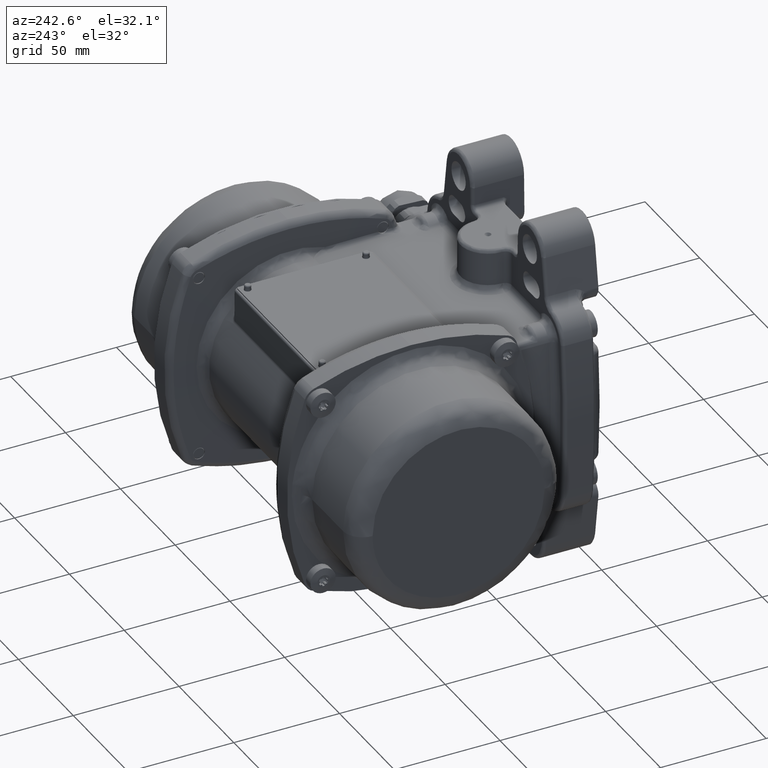
[diagram: clean part render]
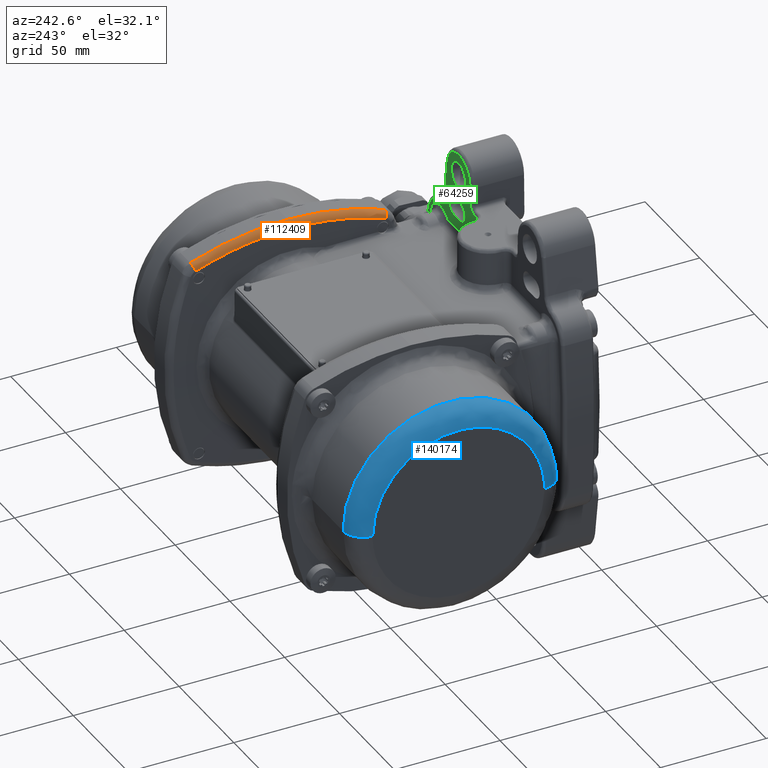
[diagram: same view with three faces highlighted in distinct colors, each labeled with its STEP entity id]
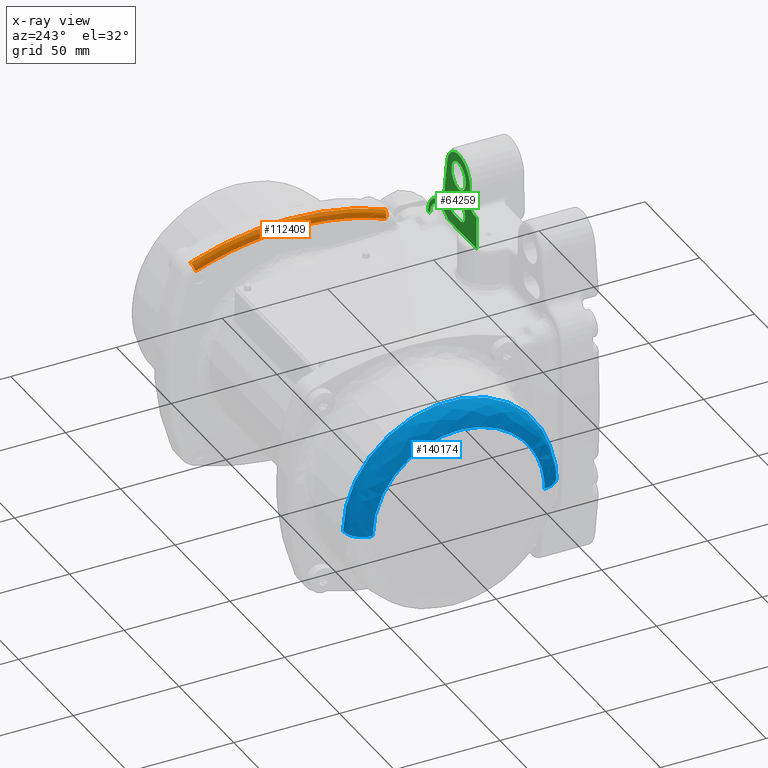
[diagram: x-ray of the same camera — body ghosted, the three highlighted faces saturated]
A machine part, auxiliary view with three faces highlighted in distinct colors.
The next image is the same camera in x-ray (body ghosted, the three faces saturated) — at least one of them is partly hidden behind the body in this view.
Their STEP definitions:

[orange] entity #112409 — the highlighted face is a freeform B-spline surface patch.
#5527 = CARTESIAN_POINT ( 'NONE',  ( 48.61371983258209900, 64.94570442712675600, 54.76739152144466500 ) ) ;
#6011 = AXIS2_PLACEMENT_3D ( 'NONE', #68147, #102125, #91673 ) ;
#6048 = CARTESIAN_POINT ( 'NONE',  ( 48.46951026061550000, 76.85898785585619900, 54.17399594048150400 ) ) ;
#6319 = CARTESIAN_POINT ( 'NONE',  ( 51.60105501471657900, 134.5244609994418300, 52.67594980419929800 ) ) ;
#7091 = CARTESIAN_POINT ( 'NONE',  ( 51.42833048294309600, 103.8399051866252000, 58.32064827485579900 ) ) ;
#7255 = CARTESIAN_POINT ( 'NONE',  ( 48.49614704456033100, 72.32049784049165500, 53.33316051039447800 ) ) ;
#7603 = CARTESIAN_POINT ( 'NONE',  ( 48.45247648479460200, 80.64076612736920400, 54.69728445269199600 ) ) ;
#8632 = CARTESIAN_POINT ( 'NONE',  ( 51.67570246307550300, 141.9816342187540100, 50.02671618596749400 ) ) ;
#8805 = CARTESIAN_POINT ( 'NONE',  ( 48.44132135633546500, 84.34050420784579700, 55.03773168961637900 ) ) ;
#9319 = CARTESIAN_POINT ( 'NONE',  ( 48.42361390779068100, 95.03173009050186700, 55.57501824047997700 ) ) ;
#9832 = CARTESIAN_POINT ( 'NONE',  ( 48.42422976488846600, 93.59045366656461300, 55.55629560074481800 ) ) ;
#10360 = CARTESIAN_POINT ( 'NONE',  ( 48.49073135167259400, 118.7652330205184400, 53.50427519209131300 ) ) ;
#10834 = CARTESIAN_POINT ( 'NONE',  ( 48.67673048814869900, 51.03358655574789500, 47.28067419441330100 ) ) ;
#10868 = CARTESIAN_POINT ( 'NONE',  ( 48.49020639426154800, 118.6749428018575000, 53.52083142521495100 ) ) ;
#11603 = CIRCLE ( 'NONE', #6011, 3.000000000000001800 ) ;
#13001 = EDGE_CURVE ( 'NONE', #125547, #132725, #138570, .T. ) ;
#16712 = EDGE_CURVE ( 'NONE', #55317, #125547, #98289, .T. ) ;
#17559 = CARTESIAN_POINT ( 'NONE',  ( 48.42935850801880100, 103.6684139957750100, 55.40277941439329400 ) ) ;
#17919 = CARTESIAN_POINT ( 'NONE',  ( 51.51236919346409600, 68.76533035875958400, 55.65252669724460300 ) ) ;
#18085 = CARTESIAN_POINT ( 'NONE',  ( 51.63671979496099600, 53.71140524554340300, 51.43563194486620200 ) ) ;
#18250 = CARTESIAN_POINT ( 'NONE',  ( 48.47052396258361300, 76.90991346697902000, 54.13795910701661300 ) ) ;
#19603 = CARTESIAN_POINT ( 'NONE',  ( 48.49999346348776200, 99.93232771788211700, 58.50020744430681700 ) ) ;
#19860 = CARTESIAN_POINT ( 'NONE',  ( 51.42833703483981400, 103.8421408328568600, 58.32044422051600900 ) ) ;
#20643 = CARTESIAN_POINT ( 'NONE',  ( 48.63778283550820400, 137.3593910833685900, 48.65854385641320300 ) ) ;
#20688 = EDGE_LOOP ( 'NONE', ( #83047, #123111, #123662, #113775, #43339 ) ) ;
#20751 = CARTESIAN_POINT ( 'NONE',  ( 51.67570246307550300, 141.9816342187540100, 50.02671618596740200 ) ) ;
#21323 = CARTESIAN_POINT ( 'NONE',  ( 48.51212029019610100, 122.4328852666649400, 52.82950133434548700 ) ) ;
#21848 = CARTESIAN_POINT ( 'NONE',  ( 48.42532265653458300, 92.15007283968894600, 55.52315384702183100 ) ) ;
#22179 = CARTESIAN_POINT ( 'NONE',  ( 48.67421793827923400, 134.5496797155318200, 52.66814498006429800 ) ) ;
#22586 = VERTEX_POINT ( 'NONE', #80656 ) ;
#27834 = CARTESIAN_POINT ( 'NONE',  ( 51.63671979496099600, 53.71140524554340300, 51.43563194486620200 ) ) ;
#29151 = EDGE_CURVE ( 'NONE', #22586, #132725, #86889, .T. ) ;
#29370 = CARTESIAN_POINT ( 'NONE',  ( 51.42981408446079400, 88.10886955799050200, 58.27349483533719600 ) ) ;
#29884 = CARTESIAN_POINT ( 'NONE',  ( 51.60139193831100400, 57.44029159500139800, 52.66421566935110100 ) ) ;
#30562 = CARTESIAN_POINT ( 'NONE',  ( 51.42395315197239800, 92.04573469983439800, 58.45443651807919800 ) ) ;
#30834 = CARTESIAN_POINT ( 'NONE',  ( 51.63675478399059000, 138.2919094536022200, 51.43436736811119700 ) ) ;
#31595 = CARTESIAN_POINT ( 'NONE',  ( 48.45213307937150700, 111.2692224610320000, 54.70781685745390600 ) ) ;
#31775 = CARTESIAN_POINT ( 'NONE',  ( 48.49210438386595700, 73.00019331610545200, 53.46094453904356000 ) ) ;
#31870 = CARTESIAN_POINT ( 'NONE',  ( 51.51176175067006800, 123.1431090096454000, 55.67234547663360900 ) ) ;
#32127 = CARTESIAN_POINT ( 'NONE',  ( 48.53963668754779800, 126.2737309078395800, 51.94701249644539600 ) ) ;
#32295 = CARTESIAN_POINT ( 'NONE',  ( 48.52037667713323500, 68.57495389253624300, 52.56023908373374100 ) ) ;
#32642 = CARTESIAN_POINT ( 'NONE',  ( 48.74745534326889600, 142.0092591833091500, 50.01617710338329200 ) ) ;
#32809 = CARTESIAN_POINT ( 'NONE',  ( 48.44002940461405200, 107.2273905072623400, 55.07715157057908300 ) ) ;
#33302 = CARTESIAN_POINT ( 'NONE',  ( 48.42352220174579700, 95.51247340396312800, 55.57781224333723500 ) ) ;
#34359 = CARTESIAN_POINT ( 'NONE',  ( 48.44623761432421100, 82.80858799624167000, 54.88738804316101000 ) ) ;
#34875 = CARTESIAN_POINT ( 'NONE',  ( 48.48969006471971000, 118.5859131712282800, 53.53711148955068200 ) ) ;
#35230 = CARTESIAN_POINT ( 'NONE',  ( 48.67673048814879900, 140.9664134442518000, 47.28067419441360600 ) ) ;
#36180 = AXIS2_PLACEMENT_3D ( 'NONE', #61113, #88153, #148233 ) ;
#39865 = CARTESIAN_POINT ( 'NONE',  ( 51.46848223554089700, 76.43015957668629300, 57.06648685439510200 ) ) ;
#40881 = CARTESIAN_POINT ( 'NONE',  ( 51.42247398630980400, 94.02512534248110400, 58.49989616555889400 ) ) ;
#41393 = CARTESIAN_POINT ( 'NONE',  ( 51.42247061470285300, 95.99547053162832800, 58.49999994036055300 ) ) ;
#42085 = CARTESIAN_POINT ( 'NONE',  ( 48.51138364519870500, 86.14192096757878400, 58.13771398864324900 ) ) ;
#42590 = CARTESIAN_POINT ( 'NONE',  ( 48.67673048814869900, 51.03358655574789500, 47.28067419441330100 ) ) ;
#43090 = CARTESIAN_POINT ( 'NONE',  ( 48.52816573008625100, 80.28512922857761700, 57.59925060312441000 ) ) ;
#43339 = ORIENTED_EDGE ( 'NONE', *, *, #87379, .T. ) ;
#43618 = CARTESIAN_POINT ( 'NONE',  ( 48.54427327176982500, 115.4861874931286800, 57.07944447143592700 ) ) ;
#44816 = CARTESIAN_POINT ( 'NONE',  ( 48.42349906240232100, 95.75420285663867000, 55.57851845684282200 ) ) ;
#45320 = CARTESIAN_POINT ( 'NONE',  ( 48.47043927774239300, 115.0045142860175100, 54.14016284088431500 ) ) ;
#45837 = CARTESIAN_POINT ( 'NONE',  ( 48.48612455661299200, 117.9630249752371300, 53.64939067888023800 ) ) ;
#46186 = CARTESIAN_POINT ( 'NONE',  ( 48.61312858009730300, 126.9753947827207000, 54.78761825024405100 ) ) ;
#47711 = EDGE_CURVE ( 'NONE', #104648, #22586, #128424, .T. ) ;
#53492 = CARTESIAN_POINT ( 'NONE',  ( 51.60139193831100400, 57.44029159500139800, 52.66421566935110100 ) ) ;
#53993 = CARTESIAN_POINT ( 'NONE',  ( 48.43521558778960700, 86.36489562540410200, 55.22407747189630100 ) ) ;
#54510 = CARTESIAN_POINT ( 'NONE',  ( 48.42349190819160000, 99.84341668472110600, 55.57873380993209600 ) ) ;
#55034 = CARTESIAN_POINT ( 'NONE',  ( 48.50568977599766600, 103.8460214299663100, 58.32035527327367000 ) ) ;
#55317 = VERTEX_POINT ( 'NONE', #10834 ) ;
#55544 = CARTESIAN_POINT ( 'NONE',  ( 51.46848223554089700, 76.43015957668629300, 57.06648685439510200 ) ) ;
#55714 = CARTESIAN_POINT ( 'NONE',  ( 48.48030011924164000, 75.01627995415762500, 53.83347280842695400 ) ) ;
#56589 = CARTESIAN_POINT ( 'NONE',  ( 51.60105501471670000, 134.5244609994418000, 52.67594980419930600 ) ) ;
#57338 =( BOUNDED_SURFACE ( )  B_SPLINE_SURFACE ( 3, 2, ( 
 ( #66475, #65966, #42590 ),
 ( #18085, #101983, #77984 ),
 ( #53492, #114489, #137030 ),
 ( #79034, #5527, #126031 ),
 ( #125510, #77494, #101455 ),
 ( #55544, #126538, #6048 ),
 ( #102485, #43090, #7603 ),
 ( #113454, #42085, #53993 ),
 ( #149521, #89963, #78496 ),
 ( #30562, #127048, #113975 ),
 ( #138560, #76983, #66981 ),
 ( #88944, #19603, #54510 ),
 ( #7091, #55034, #17559 ),
 ( #150555, #103021, #31595 ),
 ( #100939, #43618, #104047 ),
 ( #92050, #69043, #68515 ),
 ( #152113, #46186, #32127 ),
 ( #56589, #22179, #129657 ),
 ( #93077, #105075, #20643 ),
 ( #8632, #32642, #140096 ) ),
 .UNSPECIFIED., .F., .F., .F. ) 
 B_SPLINE_SURFACE_WITH_KNOTS ( ( 4, 2, 2, 2, 2, 2, 2, 2, 2, 4 ),
 ( 3, 3 ),
 ( 0.0000000000000000000, 0.01141851045592982000, 0.02283702091185965000, 0.03425553136778945000, 0.03996478659575435100, 0.04567404182371930000, 0.05709255227964910000, 0.06851106273557890100, 0.07992957319150870200, 0.09134808364743850200 ),
 ( 0.0000000000000000000, 1.000000000000000000 ),
 .UNSPECIFIED. ) 
 GEOMETRIC_REPRESENTATION_ITEM ( )  RATIONAL_B_SPLINE_SURFACE ( (
 ( 1.000000000000000000, 0.7155950758565770000, 1.000000000000000000),
 ( 1.000000000000000000, 0.7156797149484079900, 1.000000000000000000),
 ( 1.000000000000000000, 0.7157661602063930500, 1.000000000000000000),
 ( 1.000000000000000000, 0.7159312861231019700, 1.000000000000000000),
 ( 1.000000000000000000, 0.7160099537741629900, 1.000000000000000000),
 ( 1.000000000000000000, 0.7161455734733610500, 1.000000000000000000),
 ( 1.000000000000000000, 0.7162023605090200900, 1.000000000000000000),
 ( 1.000000000000000000, 0.7162610806379839900, 1.000000000000000000),
 ( 1.000000000000000000, 0.7162762655063720200, 1.000000000000000000),
 ( 1.000000000000000000, 0.7162967074541289900, 1.000000000000000000),
 ( 1.000000000000000000, 0.7163019425111519800, 1.000000000000000000),
 ( 1.000000000000000000, 0.7163019451903129800, 1.000000000000000000),
 ( 1.000000000000000000, 0.7162810226169810100, 1.000000000000000000),
 ( 1.000000000000000000, 0.7162035123865480000, 1.000000000000000000),
 ( 1.000000000000000000, 0.7161471169938940000, 1.000000000000000000),
 ( 1.000000000000000000, 0.7160117621070860600, 1.000000000000000000),
 ( 1.000000000000000000, 0.7159329675619650100, 1.000000000000000000),
 ( 1.000000000000000000, 0.7157669814152040100, 1.000000000000000000),
 ( 1.000000000000000000, 0.7156796319363240000, 1.000000000000000000),
 ( 1.000000000000000000, 0.7155950758565770000, 1.000000000000000000) ) ) 
 REPRESENTATION_ITEM ( '' )  SURFACE ( )  );
#57775 = CARTESIAN_POINT ( 'NONE',  ( 48.53821796749126300, 126.0865887013019900, 51.99242873211932200 ) ) ;
#58307 = CARTESIAN_POINT ( 'NONE',  ( 48.42349529222332200, 97.90738537984084600, 55.57862841458452200 ) ) ;
#61113 = CARTESIAN_POINT ( 'NONE',  ( 51.67570246307550300, 140.9122938880852000, 47.22376929792169900 ) ) ;
#64789 = CARTESIAN_POINT ( 'NONE',  ( 51.42247061277184600, 95.99773527005538700, 58.50000000012939700 ) ) ;
#65966 = CARTESIAN_POINT ( 'NONE',  ( 48.74745534326875400, 49.99074081669054000, 50.01617710338294400 ) ) ;
#66475 = CARTESIAN_POINT ( 'NONE',  ( 51.67570246307540300, 50.01836578124579800, 50.02671618596719600 ) ) ;
#66638 = CARTESIAN_POINT ( 'NONE',  ( 48.53991346551261900, 65.84188223814788900, 51.92924027145210900 ) ) ;
#66981 = CARTESIAN_POINT ( 'NONE',  ( 48.42350201138160100, 94.06832325716830200, 55.57842909943879300 ) ) ;
#67232 = CARTESIAN_POINT ( 'NONE',  ( 51.67570246307550300, 141.9816342187540100, 50.02671618596740200 ) ) ;
#68147 = CARTESIAN_POINT ( 'NONE',  ( 51.67570246307540300, 51.08770611191449300, 47.22376929792140000 ) ) ;
#68515 = CARTESIAN_POINT ( 'NONE',  ( 48.51278977574580200, 122.5472815967937900, 52.80838038336570200 ) ) ;
#68686 = CARTESIAN_POINT ( 'NONE',  ( 48.47772856025735400, 116.4232948052231900, 53.91264509398242000 ) ) ;
#69043 = CARTESIAN_POINT ( 'NONE',  ( 48.58692394623884100, 123.1623833049596200, 55.66828846709783800 ) ) ;
#69207 = CARTESIAN_POINT ( 'NONE',  ( 48.44638111242597500, 109.3498164631472600, 54.88333451465574300 ) ) ;
#69742 = CARTESIAN_POINT ( 'NONE',  ( 48.42381961465063300, 94.31083023177411900, 55.56875436961441000 ) ) ;
#76983 = CARTESIAN_POINT ( 'NONE',  ( 48.50000327672562900, 94.02363713088068700, 58.49989600906165100 ) ) ;
#77494 = CARTESIAN_POINT ( 'NONE',  ( 48.58751662558676500, 68.74600232387005900, 55.64844325873713900 ) ) ;
#77649 = CARTESIAN_POINT ( 'NONE',  ( 48.49260429646279400, 72.91524721669085800, 53.44515981244179400 ) ) ;
#77984 = CARTESIAN_POINT ( 'NONE',  ( 48.63774783583100000, 54.64385030888719500, 48.65978205670359800 ) ) ;
#78496 = CARTESIAN_POINT ( 'NONE',  ( 48.43084210953060200, 88.28152759446040000, 55.35658639290419800 ) ) ;
#79034 = CARTESIAN_POINT ( 'NONE',  ( 51.53921369121099600, 64.96723904162429600, 54.77267411939950400 ) ) ;
#80212 = CARTESIAN_POINT ( 'NONE',  ( 48.44168201354074200, 84.22265763839232000, 55.02671947765454500 ) ) ;
#80656 = CARTESIAN_POINT ( 'NONE',  ( 51.42247061277319600, 96.00000000000000000, 58.50000000015510400 ) ) ;
#80734 = CARTESIAN_POINT ( 'NONE',  ( 48.43950290284730200, 107.0474992323492000, 55.09320482642613800 ) ) ;
#81266 = CARTESIAN_POINT ( 'NONE',  ( 48.42924114904624800, 102.6811029246086100, 55.40461628687724300 ) ) ;
#81776 = CARTESIAN_POINT ( 'NONE',  ( 48.44038321547695600, 107.3473331481571200, 55.06636080791716400 ) ) ;
#82293 = CARTESIAN_POINT ( 'NONE',  ( 48.44222699433673500, 84.04589031900562200, 55.01007517804066500 ) ) ;
#83047 = ORIENTED_EDGE ( 'NONE', *, *, #47711, .T. ) ;
#86889 = B_SPLINE_CURVE_WITH_KNOTS ( 'NONE', 3,
 ( #102229, #137791, #19860, #149775, #137289, #31870, #103294, #6319, #30834, #67232 ),
 .UNSPECIFIED., .F., .F.,
 ( 4, 2, 2, 2, 4 ),
 ( 0.0000000000000000000, 0.2498921026990550100, 0.4999280684660366600, 0.7499640342330183800, 1.000000000000000000 ),
 .UNSPECIFIED. ) ;
#87267 = CARTESIAN_POINT ( 'NONE',  ( 51.42395315197239800, 92.04573469983439800, 58.45443651807919800 ) ) ;
#87379 = EDGE_CURVE ( 'NONE', #55317, #104648, #11603, .T. ) ;
#88153 = DIRECTION ( 'NONE',  ( 0.01009667211828134400, 0.9342680047648064300, -0.3564286078374231900 ) ) ;
#88944 = CARTESIAN_POINT ( 'NONE',  ( 51.42246388311510000, 99.92936666919470700, 58.50020713212249700 ) ) ;
#89295 = CARTESIAN_POINT ( 'NONE',  ( 51.53921369121099600, 64.96723904162429600, 54.77267411939950400 ) ) ;
#89614 = CARTESIAN_POINT ( 'NONE',  ( 48.49177169873228600, 73.05682238346669500, 53.47144722693903400 ) ) ;
#89963 = CARTESIAN_POINT ( 'NONE',  ( 48.50713397399506700, 88.10293084590196600, 58.27315384156287300 ) ) ;
#91166 = CARTESIAN_POINT ( 'NONE',  ( 48.49377695346297700, 72.71702187795416700, 53.40811377678124200 ) ) ;
#91673 = DIRECTION ( 'NONE',  ( 0.0000000000000000000, -0.3564467768895697200, 0.9343156293485822500 ) ) ;
#92050 = CARTESIAN_POINT ( 'NONE',  ( 51.51176175067019600, 123.1431090096454000, 55.67234547663360900 ) ) ;
#92730 = CARTESIAN_POINT ( 'NONE',  ( 48.44056499488122100, 107.4084699826876300, 55.06081526923475200 ) ) ;
#93077 = CARTESIAN_POINT ( 'NONE',  ( 51.63675478399070300, 138.2919094536022200, 51.43436736811119700 ) ) ;
#93249 = CARTESIAN_POINT ( 'NONE',  ( 48.48150067563340600, 117.1333313571597900, 53.79463609788638900 ) ) ;
#94296 = CARTESIAN_POINT ( 'NONE',  ( 48.48849226702964900, 118.3782233549163000, 53.57485778940979100 ) ) ;
#98289 = B_SPLINE_CURVE_WITH_KNOTS ( 'NONE', 3,
 ( #126198, #138208, #114663, #139241, #66638, #32295, #150211, #103193, #149169, #7255, #91166, #77649, #31775, #89614, #127217, #55714, #18250, #101634, #113625, #152273, #34359, #140267, #82293, #80212, #8805, #153286, #116202, #140797, #129286, #21848, #9832, #69742, #9319, #33302, #44816, #58307, #141817, #81266, #118279, #117759, #151764, #105770, #80734, #32809, #81776, #92730, #69207, #152779, #141315, #45320, #68686, #93249, #45837, #94296, #34875, #10868, #129835, #10360, #21323, #57775, #153803, #105248, #128258 ),
 .UNSPECIFIED., .F., .F.,
 ( 4, 2, 2, 2, 1, 1, 1, 1, 2, 2, 2, 2, 1, 1, 1, 2, 2, 2, 2, 1, 2, 2, 2, 2, 1, 1, 1, 2, 2, 2, 2, 1, 1, 1, 1, 2, 2, 2, 4 ),
 ( 0.0000000000000000000, 0.1249999999999409100, 0.1874999999999114000, 0.2187499999998966400, 0.2343749999998892800, 0.2421874999998855900, 0.2460937499998837600, 0.2480468749998828400, 0.2490234374998824000, 0.2499999999998819300, 0.3124999999998705500, 0.3437499999998650500, 0.3593749999998622800, 0.3671874999998611100, 0.3710937499998607800, 0.3730468749998607800, 0.3749999999998607800, 0.4374999999998570600, 0.4687499999998552300, 0.4843749999998542800, 0.4921874999998540600, 0.4999999999998537800, 0.5624999999998527800, 0.5937499999998523400, 0.6093749999998520100, 0.6171874999998519000, 0.6210937499998520100, 0.6230468749998523400, 0.6249999999998526700, 0.6874999999998668800, 0.7187499999998742100, 0.7343749999998778800, 0.7421874999998797600, 0.7460937499998808700, 0.7480468749998815400, 0.7490234374998818700, 0.7499999999998820900, 0.8749999999999410500, 1.000000000000000000 ),
 .UNSPECIFIED. ) ;
#100284 = CARTESIAN_POINT ( 'NONE',  ( 51.67570246307540300, 50.01836578124579800, 50.02671618596719600 ) ) ;
#100939 = CARTESIAN_POINT ( 'NONE',  ( 51.46800556643569300, 115.4716978647209900, 57.08159002007100500 ) ) ;
#101297 = CARTESIAN_POINT ( 'NONE',  ( 51.45144845972710400, 80.29689647844858800, 57.60059974179179700 ) ) ;
#101455 = CARTESIAN_POINT ( 'NONE',  ( 48.51339721853599900, 69.36318178637030500, 52.78896889680740400 ) ) ;
#101634 = CARTESIAN_POINT ( 'NONE',  ( 48.45790516148944200, 79.74358155284237200, 54.52856626463022100 ) ) ;
#101983 = CARTESIAN_POINT ( 'NONE',  ( 48.70917038686139500, 53.68461378896697100, 51.42638038556520300 ) ) ;
#102125 = DIRECTION ( 'NONE',  ( -0.01009667211827564000, 0.9342680047648049800, 0.3564286078374270300 ) ) ;
#102229 = CARTESIAN_POINT ( 'NONE',  ( 51.42247061277319600, 95.99999999999998600, 58.50000000015510400 ) ) ;
#102485 = CARTESIAN_POINT ( 'NONE',  ( 51.45144845972710400, 80.29689647844858800, 57.60059974179179700 ) ) ;
#103021 = CARTESIAN_POINT ( 'NONE',  ( 48.52783171478153400, 111.6227720861347000, 57.61001668809291200 ) ) ;
#103193 = CARTESIAN_POINT ( 'NONE',  ( 48.50530419859285300, 70.84652133727085800, 53.04239152472003800 ) ) ;
#103294 = CARTESIAN_POINT ( 'NONE',  ( 51.53860866248477600, 126.9538968230449400, 54.79287680044869500 ) ) ;
#104047 = CARTESIAN_POINT ( 'NONE',  ( 48.46903359150680000, 115.0450287405909900, 54.18879185377029700 ) ) ;
#104648 = VERTEX_POINT ( 'NONE', #113463 ) ;
#105075 = CARTESIAN_POINT ( 'NONE',  ( 48.70920475372877000, 138.3187020614466600, 51.42511449933843400 ) ) ;
#105248 = CARTESIAN_POINT ( 'NONE',  ( 48.63600917736353300, 137.1951289479003200, 48.72129140570739000 ) ) ;
#105770 = CARTESIAN_POINT ( 'NONE',  ( 48.43830390041798500, 106.6279077645370100, 55.12973412799052400 ) ) ;
#108064 = FACE_OUTER_BOUND ( 'NONE', #20688, .T. ) ;
#112409 = ADVANCED_FACE ( 'NONE', ( #108064 ), #57338, .T. ) ;
#113454 = CARTESIAN_POINT ( 'NONE',  ( 51.43418756271339700, 86.14932577150899800, 58.13826023329139800 ) ) ;
#113463 = CARTESIAN_POINT ( 'NONE',  ( 51.67570246307540300, 50.01836578124579800, 50.02671618596719600 ) ) ;
#113625 = CARTESIAN_POINT ( 'NONE',  ( 48.45403980010687700, 80.68702282697159900, 54.64772340030367600 ) ) ;
#113775 = ORIENTED_EDGE ( 'NONE', *, *, #16712, .F. ) ;
#113975 = CARTESIAN_POINT ( 'NONE',  ( 48.42498117704919700, 92.13222944954009100, 55.53388347584380100 ) ) ;
#114489 = CARTESIAN_POINT ( 'NONE',  ( 48.67454811123517500, 57.41506307624619900, 52.65639874376217500 ) ) ;
#114663 = CARTESIAN_POINT ( 'NONE',  ( 48.60046881695473100, 58.50052850707336200, 49.92819519827875000 ) ) ;
#116202 = CARTESIAN_POINT ( 'NONE',  ( 48.43514604652891400, 86.38818858286435900, 55.22619596504183900 ) ) ;
#117759 = CARTESIAN_POINT ( 'NONE',  ( 48.43427191558205200, 105.0714130630009900, 55.25225454251585000 ) ) ;
#118279 = CARTESIAN_POINT ( 'NONE',  ( 48.43103767184812400, 103.6365098157152000, 55.35029223068411100 ) ) ;
#123111 = ORIENTED_EDGE ( 'NONE', *, *, #29151, .T. ) ;
#123662 = ORIENTED_EDGE ( 'NONE', *, *, #13001, .F. ) ;
#123824 = CARTESIAN_POINT ( 'NONE',  ( 51.43418756271339700, 86.14932577150899800, 58.13826023329139800 ) ) ;
#124355 = CARTESIAN_POINT ( 'NONE',  ( 51.42247061277319600, 96.00000000000000000, 58.50000000015510400 ) ) ;
#125510 = CARTESIAN_POINT ( 'NONE',  ( 51.51236919346409600, 68.76533035875958400, 55.65252669724460300 ) ) ;
#125547 = VERTEX_POINT ( 'NONE', #35230 ) ;
#126031 = CARTESIAN_POINT ( 'NONE',  ( 48.54024171628590500, 65.64915425884480300, 51.92722809123850400 ) ) ;
#126198 = CARTESIAN_POINT ( 'NONE',  ( 48.67673048814869900, 51.03358655574789500, 47.28067419441330100 ) ) ;
#126538 = CARTESIAN_POINT ( 'NONE',  ( 48.54473734805767300, 76.41560466678208700, 57.06431967930621600 ) ) ;
#127048 = CARTESIAN_POINT ( 'NONE',  ( 48.50143985622789000, 92.04272686507900400, 58.45436631898096600 ) ) ;
#127217 = CARTESIAN_POINT ( 'NONE',  ( 48.49161395754575200, 73.08371723185094000, 53.47642620216964800 ) ) ;
#128258 = CARTESIAN_POINT ( 'NONE',  ( 48.67673048814879900, 140.9664134442518000, 47.28067419441360600 ) ) ;
#128424 = B_SPLINE_CURVE_WITH_KNOTS ( 'NONE', 3,
 ( #100284, #27834, #29884, #89295, #17919, #39865, #101297, #123824, #29370, #87267, #40881, #41393, #64789, #124355 ),
 .UNSPECIFIED., .F., .F.,
 ( 4, 2, 2, 2, 2, 2, 4 ),
 ( 0.0000000000000000000, 0.2499640445783327700, 0.4999280891566657600, 0.7498921337349980800, 0.8748741560241643000, 0.9998561783133315100, 1.000000000000000000 ),
 .UNSPECIFIED. ) ;
#129286 = CARTESIAN_POINT ( 'NONE',  ( 48.42641470585934400, 91.19031439206281700, 55.49010335872677000 ) ) ;
#129657 = CARTESIAN_POINT ( 'NONE',  ( 48.60208303980049700, 133.6760345968682200, 49.87411164436819900 ) ) ;
#129835 = CARTESIAN_POINT ( 'NONE',  ( 48.49055127788379600, 118.7343003007459000, 53.50995511426154400 ) ) ;
#132725 = VERTEX_POINT ( 'NONE', #20751 ) ;
#137030 = CARTESIAN_POINT ( 'NONE',  ( 48.60241996338270100, 58.28950494887579500, 49.86262345862569800 ) ) ;
#137289 = CARTESIAN_POINT ( 'NONE',  ( 51.46800556643557200, 115.4716978647210100, 57.08159002007099800 ) ) ;
#137791 = CARTESIAN_POINT ( 'NONE',  ( 51.42247063586780300, 99.93386667009515600, 58.50000044877995000 ) ) ;
#138208 = CARTESIAN_POINT ( 'NONE',  ( 48.63618329566683200, 54.78874559725901600, 48.71513153953813500 ) ) ;
#138560 = CARTESIAN_POINT ( 'NONE',  ( 51.42247398630980400, 94.02512534248110400, 58.49989616555889400 ) ) ;
#138570 = CIRCLE ( 'NONE', #36180, 2.999999999999994200 ) ;
#139241 = CARTESIAN_POINT ( 'NONE',  ( 48.55414616954131900, 64.01322603732184300, 51.46446227097308700 ) ) ;
#140096 = CARTESIAN_POINT ( 'NONE',  ( 48.67673048814879900, 140.9664134442518000, 47.28067419441360600 ) ) ;
#140267 = CARTESIAN_POINT ( 'NONE',  ( 48.44352658111054000, 83.63344728846510600, 54.97035637932302200 ) ) ;
#140797 = CARTESIAN_POINT ( 'NONE',  ( 48.43078121851552000, 88.30994104329322200, 55.35801776949358600 ) ) ;
#141315 = CARTESIAN_POINT ( 'NONE',  ( 48.46591968704866100, 114.0603874789179200, 54.28051431128201900 ) ) ;
#141817 = CARTESIAN_POINT ( 'NONE',  ( 48.42493049970276100, 99.81598688588448500, 55.53500127739518200 ) ) ;
#148233 = DIRECTION ( 'NONE',  ( 0.0000000000000000000, 0.3564467768895636100, 0.9343156293485845900 ) ) ;
#149169 = CARTESIAN_POINT ( 'NONE',  ( 48.50098633514290500, 71.52713838723462900, 53.17979958154052900 ) ) ;
#149521 = CARTESIAN_POINT ( 'NONE',  ( 51.42981408446079400, 88.10886955799050200, 58.27349483533719600 ) ) ;
#149775 = CARTESIAN_POINT ( 'NONE',  ( 51.45110505430037100, 111.6110722095627900, 57.61134984753380200 ) ) ;
#150211 = CARTESIAN_POINT ( 'NONE',  ( 48.51416645895071900, 69.48434037364762600, 52.75953231619416800 ) ) ;
#150555 = CARTESIAN_POINT ( 'NONE',  ( 51.45110505430049800, 111.6110722095627900, 57.61134984753380900 ) ) ;
#151764 = CARTESIAN_POINT ( 'NONE',  ( 48.43602390233176900, 105.7893122825867400, 55.19909432867722600 ) ) ;
#152113 = CARTESIAN_POINT ( 'NONE',  ( 51.53860866248489700, 126.9538968230450000, 54.79287680044869500 ) ) ;
#152273 = CARTESIAN_POINT ( 'NONE',  ( 48.44875311650621800, 82.10151113081924700, 54.81020981307767700 ) ) ;
#152779 = CARTESIAN_POINT ( 'NONE',  ( 48.45338070791611100, 111.2313483936550700, 54.66854994777820300 ) ) ;
#153286 = CARTESIAN_POINT ( 'NONE',  ( 48.44114652685542000, 84.39804614160017600, 55.04306861622377100 ) ) ;
#153803 = CARTESIAN_POINT ( 'NONE',  ( 48.60016241107500400, 133.4676447616753000, 49.93859041015649300 ) ) ;

[blue] entity #140174 — the highlighted face is a freeform B-spline surface patch.
#2818 = ORIENTED_EDGE ( 'NONE', *, *, #138259, .T. ) ;
#3734 = CARTESIAN_POINT ( 'NONE',  ( -104.5000000000000000, 55.30000000000001800, 3.273650693299580500E-013 ) ) ;
#7376 = VERTEX_POINT ( 'NONE', #86721 ) ;
#8263 =( BOUNDED_CURVE ( )  B_SPLINE_CURVE ( 3, ( #22522, #93965, #153463, #34540 ),
 .UNSPECIFIED., .F., .F. ) 
 B_SPLINE_CURVE_WITH_KNOTS ( ( 4, 4 ),
 ( 0.0000000000000000000, 1.000000000000000000 ),
 .UNSPECIFIED. ) 
 CURVE ( )  GEOMETRIC_REPRESENTATION_ITEM ( )  RATIONAL_B_SPLINE_CURVE ( ( 1.000000000000000000, 0.3333333333333327600, 0.3333333333333327600, 1.000000000000000000 ) ) 
 REPRESENTATION_ITEM ( '' )  );
#12632 = AXIS2_PLACEMENT_3D ( 'NONE', #66644, #102662, #31271 ) ;
#17339 = EDGE_LOOP ( 'NONE', ( #51918, #68510, #2818, #139327 ) ) ;
#22313 = DIRECTION ( 'NONE',  ( 4.716036204949091000E-016, 3.029182966680069500E-017, 1.000000000000000000 ) ) ;
#22522 = CARTESIAN_POINT ( 'NONE',  ( -104.5000000000000000, 136.6999999999999900, 2.826635809212974600E-013 ) ) ;
#23189 = CARTESIAN_POINT ( 'NONE',  ( -95.30000000000001100, 145.9000000000000100, 2.669119143850404200E-013 ) ) ;
#27714 = CARTESIAN_POINT ( 'NONE',  ( -104.5000000000000400, 136.6999999999999900, 1.920660917057672800E-013 ) ) ;
#28759 = CARTESIAN_POINT ( 'NONE',  ( -104.4999999999999600, 49.91076477383254700, 92.17847045233554600 ) ) ;
#31271 = DIRECTION ( 'NONE',  ( -1.390559900582610900E-015, -1.000000000000000000, 6.131589175950067400E-016 ) ) ;
#34540 = CARTESIAN_POINT ( 'NONE',  ( -104.5000000000000000, 55.30000000000000400, 3.273650693299585000E-013 ) ) ;
#40245 = CARTESIAN_POINT ( 'NONE',  ( -100.6892352261675100, 46.10000000000005100, 99.80000000000053700 ) ) ;
#43790 =( BOUNDED_SURFACE ( )  B_SPLINE_SURFACE ( 3, 3, ( 
 ( #3734, #64159, #134150, #27714 ),
 ( #147210, #28759, #86123, #75671 ),
 ( #135184, #40245, #146166, #123161 ),
 ( #52203, #122643, #51693, #135702 ) ),
 .UNSPECIFIED., .F., .F., .T. ) 
 B_SPLINE_SURFACE_WITH_KNOTS ( ( 4, 4 ),
 ( 4, 4 ),
 ( 0.0000000000000000000, 1.000000000000000000 ),
 ( 0.0000000000000000000, 1.000000000000000000 ),
 .UNSPECIFIED. ) 
 GEOMETRIC_REPRESENTATION_ITEM ( )  RATIONAL_B_SPLINE_SURFACE ( (
 ( 1.000000000000000000, 0.3333333333333326500, 0.3333333333333326500, 1.000000000000000000),
 ( 0.8047378541243643800, 0.2682459513747875700, 0.2682459513747875700, 0.8047378541243643800),
 ( 0.8047378541243643800, 0.2682459513747875700, 0.2682459513747875700, 0.8047378541243643800),
 ( 1.000000000000000000, 0.3333333333333326500, 0.3333333333333326500, 1.000000000000000000) ) ) 
 REPRESENTATION_ITEM ( '' )  SURFACE ( )  );
#51693 = CARTESIAN_POINT ( 'NONE',  ( -95.29999999999998300, 145.9000000000002900, 99.80000000000035200 ) ) ;
#51918 = ORIENTED_EDGE ( 'NONE', *, *, #72118, .F. ) ;
#52203 = CARTESIAN_POINT ( 'NONE',  ( -95.29999999999998300, 46.10000000000000100, 3.286673780632787700E-013 ) ) ;
#57234 = CARTESIAN_POINT ( 'NONE',  ( -95.29999999999999700, 55.30000000000000400, 3.230263160214054900E-013 ) ) ;
#60540 = CARTESIAN_POINT ( 'NONE',  ( -95.30000000000006800, 46.10000000000000100, 3.286673780632788200E-013 ) ) ;
#62929 = EDGE_CURVE ( 'NONE', #7376, #111762, #8263, .T. ) ;
#64159 = CARTESIAN_POINT ( 'NONE',  ( -104.4999999999999400, 55.30000000000006100, 81.40000000000047500 ) ) ;
#66644 = CARTESIAN_POINT ( 'NONE',  ( -95.29999999999999700, 96.00000000000000000, 2.980707480752879800E-013 ) ) ;
#68510 = ORIENTED_EDGE ( 'NONE', *, *, #62929, .T. ) ;
#71543 = AXIS2_PLACEMENT_3D ( 'NONE', #57234, #22313, #152745 ) ;
#72118 = EDGE_CURVE ( 'NONE', #7376, #127374, #76790, .T. ) ;
#75671 = CARTESIAN_POINT ( 'NONE',  ( -104.5000000000000400, 142.0892352261674900, 1.774551189683590900E-013 ) ) ;
#76790 = CIRCLE ( 'NONE', #152207, 9.200000000000013500 ) ;
#86123 = CARTESIAN_POINT ( 'NONE',  ( -104.5000000000000000, 142.0892352261678000, 92.17847045233537500 ) ) ;
#86721 = CARTESIAN_POINT ( 'NONE',  ( -104.5000000000000000, 136.6999999999999900, 2.826635809212974600E-013 ) ) ;
#89773 = DIRECTION ( 'NONE',  ( -4.716036204949049500E-016, 9.217285024793462600E-017, -1.000000000000000000 ) ) ;
#91730 = CARTESIAN_POINT ( 'NONE',  ( -104.5000000000000000, 55.30000000000000400, 3.273650693299585000E-013 ) ) ;
#93868 = EDGE_CURVE ( 'NONE', #127374, #144988, #150778, .T. ) ;
#93965 = CARTESIAN_POINT ( 'NONE',  ( -104.4999999999999700, 136.7000000000001900, 81.40000000000033300 ) ) ;
#102662 = DIRECTION ( 'NONE',  ( 1.000000000000000000, 4.149262347430244700E-016, -4.716036204949070300E-016 ) ) ;
#111762 = VERTEX_POINT ( 'NONE', #91730 ) ;
#122643 = CARTESIAN_POINT ( 'NONE',  ( -95.29999999999994000, 46.10000000000006500, 99.80000000000052300 ) ) ;
#123161 = CARTESIAN_POINT ( 'NONE',  ( -100.6892352261675700, 145.9000000000000100, 1.653264306018121500E-013 ) ) ;
#123773 = CARTESIAN_POINT ( 'NONE',  ( -95.30000000000004000, 136.7000000000000200, 2.780994926017012600E-013 ) ) ;
#127374 = VERTEX_POINT ( 'NONE', #23189 ) ;
#128917 = FACE_OUTER_BOUND ( 'NONE', #17339, .T. ) ;
#134150 = CARTESIAN_POINT ( 'NONE',  ( -104.4999999999999900, 136.7000000000002200, 81.40000000000033300 ) ) ;
#135184 = CARTESIAN_POINT ( 'NONE',  ( -100.6892352261675300, 46.10000000000000100, 3.312089609076381100E-013 ) ) ;
#135702 = CARTESIAN_POINT ( 'NONE',  ( -95.30000000000002600, 145.9000000000000100, 1.627848477574528900E-013 ) ) ;
#137347 = DIRECTION ( 'NONE',  ( -1.508455196501569300E-015, 1.000000000000000000, -4.906942376802684400E-016 ) ) ;
#138259 = EDGE_CURVE ( 'NONE', #111762, #144988, #147496, .T. ) ;
#139327 = ORIENTED_EDGE ( 'NONE', *, *, #93868, .F. ) ;
#140174 = ADVANCED_FACE ( 'NONE', ( #128917 ), #43790, .T. ) ;
#144988 = VERTEX_POINT ( 'NONE', #60540 ) ;
#146166 = CARTESIAN_POINT ( 'NONE',  ( -100.6892352261675300, 145.9000000000002900, 99.80000000000035200 ) ) ;
#147210 = CARTESIAN_POINT ( 'NONE',  ( -104.5000000000000100, 49.91076477383248300, 3.306695269678997600E-013 ) ) ;
#147496 = CIRCLE ( 'NONE', #71543, 9.199999999999999300 ) ;
#150778 = CIRCLE ( 'NONE', #12632, 49.89999999999999900 ) ;
#152207 = AXIS2_PLACEMENT_3D ( 'NONE', #123773, #89773, #137347 ) ;
#152745 = DIRECTION ( 'NONE',  ( -1.508455196501571400E-015, -1.000000000000000000, 6.131589175950047700E-016 ) ) ;
#153463 = CARTESIAN_POINT ( 'NONE',  ( -104.4999999999999600, 55.30000000000006100, 81.40000000000046000 ) ) ;

[green] entity #64259 — the highlighted planar face has unit normal (-0, -1, -0).
#324 = ORIENTED_EDGE ( 'NONE', *, *, #135289, .F. ) ;
#1172 = VERTEX_POINT ( 'NONE', #153619 ) ;
#4216 = VERTEX_POINT ( 'NONE', #17837 ) ;
#5060 = DIRECTION ( 'NONE',  ( 9.992007221626410800E-016, 1.000000000000000000, -3.356031614387180000E-016 ) ) ;
#5373 = ORIENTED_EDGE ( 'NONE', *, *, #74176, .F. ) ;
#5543 = DIRECTION ( 'NONE',  ( 0.0000000000000000000, 0.0000000000000000000, -1.000000000000000000 ) ) ;
#6454 = DIRECTION ( 'NONE',  ( 0.0000000000000000000, 5.337610695313749400E-016, -1.000000000000000000 ) ) ;
#8034 = CARTESIAN_POINT ( 'NONE',  ( 42.07230995456590300, 25.00000000000000000, 43.00000000000000000 ) ) ;
#8080 = ORIENTED_EDGE ( 'NONE', *, *, #84252, .F. ) ;
#10101 = EDGE_CURVE ( 'NONE', #82507, #142989, #115828, .T. ) ;
#10596 = CARTESIAN_POINT ( 'NONE',  ( 56.41318565198802300, 24.99999999999999600, 46.68642903622598100 ) ) ;
#10747 = ORIENTED_EDGE ( 'NONE', *, *, #110049, .F. ) ;
#11299 = CARTESIAN_POINT ( 'NONE',  ( 58.44273118149189400, 25.00000000000000000, 37.53813159073645500 ) ) ;
#12633 = VERTEX_POINT ( 'NONE', #41264 ) ;
#13470 = CARTESIAN_POINT ( 'NONE',  ( 45.51081938984629700, 25.00000000000000000, 53.97999996212379900 ) ) ;
#13732 = DIRECTION ( 'NONE',  ( 0.0000000000000000000, 0.0000000000000000000, -1.000000000000000000 ) ) ;
#14385 = CARTESIAN_POINT ( 'NONE',  ( 16.00000000000000000, 25.00000000000000000, 43.00000000000000000 ) ) ;
#14822 = EDGE_LOOP ( 'NONE', ( #115924, #152791, #25856, #95158 ) ) ;
#14823 = EDGE_CURVE ( 'NONE', #82507, #22685, #93568, .T. ) ;
#14922 = ORIENTED_EDGE ( 'NONE', *, *, #41117, .F. ) ;
#15330 = ORIENTED_EDGE ( 'NONE', *, *, #10101, .T. ) ;
#16669 = EDGE_CURVE ( 'NONE', #4216, #46970, #133693, .T. ) ;
#17052 = VERTEX_POINT ( 'NONE', #84030 ) ;
#17351 = DIRECTION ( 'NONE',  ( -0.01745240643727600400, 3.393399983487021300E-016, -0.9998476951563913800 ) ) ;
#17837 = CARTESIAN_POINT ( 'NONE',  ( 21.85769382100695100, 25.00000000000000000, 61.93891657746960500 ) ) ;
#18032 = ORIENTED_EDGE ( 'NONE', *, *, #14823, .F. ) ;
#18587 = LINE ( 'NONE', #115959, #119290 ) ;
#18744 = CARTESIAN_POINT ( 'NONE',  ( 20.38021865953458800, 24.99999999999999600, 58.50000000000000000 ) ) ;
#18770 = LINE ( 'NONE', #39813, #59762 ) ;
#22169 = CARTESIAN_POINT ( 'NONE',  ( 18.35822688795955000, 25.00000000000000000, 58.50000000000000000 ) ) ;
#22583 = DIRECTION ( 'NONE',  ( -2.856459287044414600E-031, 3.582862289520049800E-016, -1.000000000000000000 ) ) ;
#22685 = VERTEX_POINT ( 'NONE', #11299 ) ;
#23287 = ORIENTED_EDGE ( 'NONE', *, *, #16669, .F. ) ;
#25753 = DIRECTION ( 'NONE',  ( 9.992007221626410800E-016, 1.000000000000000000, -3.356031614387180000E-016 ) ) ;
#25856 = ORIENTED_EDGE ( 'NONE', *, *, #33977, .F. ) ;
#26967 = EDGE_CURVE ( 'NONE', #152295, #142989, #121832, .T. ) ;
#28681 = CIRCLE ( 'NONE', #101111, 4.499999999999934300 ) ;
#29161 = CARTESIAN_POINT ( 'NONE',  ( 42.07230995456590300, 25.00000000000000000, 43.00000000000000000 ) ) ;
#29791 = LINE ( 'NONE', #103636, #153034 ) ;
#30332 = ORIENTED_EDGE ( 'NONE', *, *, #26967, .F. ) ;
#30950 = AXIS2_PLACEMENT_3D ( 'NONE', #48698, #120149, #13732 ) ;
#33977 = EDGE_CURVE ( 'NONE', #48147, #17052, #146977, .T. ) ;
#35422 = CARTESIAN_POINT ( 'NONE',  ( 31.00000000000000000, 24.99999999997369900, 53.00000000000000000 ) ) ;
#36702 = VERTEX_POINT ( 'NONE', #101710 ) ;
#38228 = LINE ( 'NONE', #97184, #122181 ) ;
#39363 = DIRECTION ( 'NONE',  ( -0.1084854908605850000, -4.736036478288740200E-016, 0.9940980325263388800 ) ) ;
#39813 = CARTESIAN_POINT ( 'NONE',  ( 22.00159920085784600, 25.00000000000000000, 70.18325026759140400 ) ) ;
#39880 = LINE ( 'NONE', #86788, #110756 ) ;
#41117 = EDGE_CURVE ( 'NONE', #36702, #141470, #153273, .T. ) ;
#41264 = CARTESIAN_POINT ( 'NONE',  ( 32.50000000000001400, 24.99999999997365300, 76.49999999999940300 ) ) ;
#42681 = DIRECTION ( 'NONE',  ( -0.1081726778752738200, -4.732772509811961100E-016, 0.9941321198720480800 ) ) ;
#43993 = CARTESIAN_POINT ( 'NONE',  ( 60.51402889317550700, 25.00000000000000000, 36.99137674618950200 ) ) ;
#44753 = ORIENTED_EDGE ( 'NONE', *, *, #128999, .F. ) ;
#44942 = EDGE_LOOP ( 'NONE', ( #8080, #154104, #18032, #15330, #30332, #5373, #23287, #55475, #112563, #14922, #10747, #44753, #137176 ) ) ;
#46077 = CARTESIAN_POINT ( 'NONE',  ( 60.43084051008330000, 25.00000000000000000, 37.75589737428665400 ) ) ;
#46970 = VERTEX_POINT ( 'NONE', #22169 ) ;
#47407 = DIRECTION ( 'NONE',  ( 1.000000000000000000, 1.082467449009528000E-015, 2.519116367258504500E-031 ) ) ;
#48147 = VERTEX_POINT ( 'NONE', #60524 ) ;
#48255 = DIRECTION ( 'NONE',  ( 0.0000000000000000000, 5.337610695313749400E-016, -1.000000000000000000 ) ) ;
#48698 = CARTESIAN_POINT ( 'NONE',  ( 37.00000000000000000, 24.99999999997369900, 53.00000000000000000 ) ) ;
#50864 = EDGE_CURVE ( 'NONE', #1172, #132594, #79267, .T. ) ;
#50869 = CIRCLE ( 'NONE', #95319, 6.499999999999395200 ) ;
#51636 = DIRECTION ( 'NONE',  ( -1.000000000000000000, -1.082467449009528000E-015, -2.519116367258504500E-031 ) ) ;
#52585 = ORIENTED_EDGE ( 'NONE', *, *, #79733, .F. ) ;
#54682 = CARTESIAN_POINT ( 'NONE',  ( 18.35822688795955000, 25.00000000000000000, 58.50000000000000000 ) ) ;
#54812 = EDGE_CURVE ( 'NONE', #98295, #4216, #18770, .T. ) ;
#54934 = CARTESIAN_POINT ( 'NONE',  ( 48.50200131008791300, 25.00000000000001400, 49.85275519982486300 ) ) ;
#55475 = ORIENTED_EDGE ( 'NONE', *, *, #54812, .F. ) ;
#59762 = VECTOR ( 'NONE', #17351, 1000.000000000000100 ) ;
#60524 = CARTESIAN_POINT ( 'NONE',  ( 37.00000000000000000, 24.99999999999445100, 48.50000000000000000 ) ) ;
#61092 = CARTESIAN_POINT ( 'NONE',  ( 16.00000000000000000, 25.00000000000000000, 70.00000000000000000 ) ) ;
#61611 = EDGE_CURVE ( 'NONE', #17052, #1172, #28681, .T. ) ;
#61640 = VECTOR ( 'NONE', #51636, 1000.000000000000000 ) ;
#61937 = CARTESIAN_POINT ( 'NONE',  ( 51.37762559398830600, 25.00000000000000000, 47.75065669020899900 ) ) ;
#61985 = CARTESIAN_POINT ( 'NONE',  ( 42.88466656530005100, 25.00000000000000000, 71.55199881686090200 ) ) ;
#62040 = FACE_BOUND ( 'NONE', #14822, .T. ) ;
#62116 = VERTEX_POINT ( 'NONE', #82783 ) ;
#62687 = EDGE_LOOP ( 'NONE', ( #52585, #324 ) ) ;
#63063 = CARTESIAN_POINT ( 'NONE',  ( -32.50000000000000000, 25.00000000000000000, 43.00000000000000000 ) ) ;
#63549 = VERTEX_POINT ( 'NONE', #104888 ) ;
#64259 = ADVANCED_FACE ( 'NONE', ( #140557, #62040, #95725 ), #70493, .F. ) ;
#65536 = CARTESIAN_POINT ( 'NONE',  ( 22.31494567170575000, 25.00000000000002100, 88.13485755960253700 ) ) ;
#65834 = CIRCLE ( 'NONE', #30950, 4.499999999999934300 ) ;
#68939 = CARTESIAN_POINT ( 'NONE',  ( 51.37762559398830600, 25.00000000000000000, 47.75065669020899900 ) ) ;
#70493 = PLANE ( 'NONE',  #74392 ) ;
#74176 = EDGE_CURVE ( 'NONE', #46970, #152295, #18587, .T. ) ;
#74392 = AXIS2_PLACEMENT_3D ( 'NONE', #94019, #94520, #22583 ) ;
#75341 = VECTOR ( 'NONE', #47407, 1000.000000000000000 ) ;
#76748 = VECTOR ( 'NONE', #149057, 1000.000000000000100 ) ;
#79267 = LINE ( 'NONE', #82310, #75341 ) ;
#79733 = EDGE_CURVE ( 'NONE', #62116, #12633, #122889, .T. ) ;
#82310 = CARTESIAN_POINT ( 'NONE',  ( -32.50000000000000000, 25.00000000000000000, 57.50000000000000000 ) ) ;
#82507 = VERTEX_POINT ( 'NONE', #29161 ) ;
#82783 = CARTESIAN_POINT ( 'NONE',  ( 32.50000000000000000, 24.99999999997365300, 63.50000000000061100 ) ) ;
#84030 = CARTESIAN_POINT ( 'NONE',  ( 31.00000000000000000, 25.00000000002290100, 48.50000000000000000 ) ) ;
#84252 = EDGE_CURVE ( 'NONE', #100792, #103532, #38228, .T. ) ;
#86282 = EDGE_CURVE ( 'NONE', #132594, #48147, #65834, .T. ) ;
#86788 = CARTESIAN_POINT ( 'NONE',  ( 58.50239830259099700, 25.00000000000000000, 36.99137674618945200 ) ) ;
#88817 = CARTESIAN_POINT ( 'NONE',  ( 32.50000000000000000, 24.99999999997365000, 70.00000000000000000 ) ) ;
#89845 = CARTESIAN_POINT ( 'NONE',  ( 58.50239830259099700, 25.00000000000000000, 36.99137674618950200 ) ) ;
#90053 = VECTOR ( 'NONE', #132067, 1000.000000000000000 ) ;
#91435 = CARTESIAN_POINT ( 'NONE',  ( 57.41582876382247500, 25.00000000000000000, 46.87872344460640100 ) ) ;
#91944 = CARTESIAN_POINT ( 'NONE',  ( 58.44273118149189400, 25.00000000000000000, 37.53813159073645500 ) ) ;
#93568 =( BOUNDED_CURVE ( )  B_SPLINE_CURVE ( 3, ( #8034, #54934, #91435, #91944 ),
 .UNSPECIFIED., .F., .T. ) 
 B_SPLINE_CURVE_WITH_KNOTS ( ( 4, 4 ),
 ( 0.0000000000000000000, 1.000000000000000000 ),
 .UNSPECIFIED. ) 
 CURVE ( )  GEOMETRIC_REPRESENTATION_ITEM ( )  RATIONAL_B_SPLINE_CURVE ( ( 1.000000000000000000, 0.6121732896406646400, 0.6121732896406646400, 1.000000000000000000 ) ) 
 REPRESENTATION_ITEM ( '' )  );
#94019 = CARTESIAN_POINT ( 'NONE',  ( -32.50000000000000000, 25.00000000000000000, 70.00000000000000000 ) ) ;
#94520 = DIRECTION ( 'NONE',  ( -9.992007221626410800E-016, -1.000000000000000000, -3.582862289520049800E-016 ) ) ;
#95158 = ORIENTED_EDGE ( 'NONE', *, *, #86282, .F. ) ;
#95319 = AXIS2_PLACEMENT_3D ( 'NONE', #109237, #144260, #48255 ) ;
#95490 =( BOUNDED_CURVE ( )  B_SPLINE_CURVE ( 3, ( #61985, #148094, #65536, #123537 ),
 .UNSPECIFIED., .F., .T. ) 
 B_SPLINE_CURVE_WITH_KNOTS ( ( 4, 4 ),
 ( 0.0000000000000000000, 1.000000000000000000 ),
 .UNSPECIFIED. ) 
 CURVE ( )  GEOMETRIC_REPRESENTATION_ITEM ( )  RATIONAL_B_SPLINE_CURVE ( ( 1.000000000000000000, 0.3885388050081351500, 0.3885388050081351500, 1.000000000000000000 ) ) 
 REPRESENTATION_ITEM ( '' )  );
#95725 = FACE_OUTER_BOUND ( 'NONE', #44942, .T. ) ;
#97184 = CARTESIAN_POINT ( 'NONE',  ( -32.50000000000000000, 25.00000000000000000, 36.99137674618950200 ) ) ;
#98295 = VERTEX_POINT ( 'NONE', #140958 ) ;
#100792 = VERTEX_POINT ( 'NONE', #89845 ) ;
#101111 = AXIS2_PLACEMENT_3D ( 'NONE', #35422, #5060, #5543 ) ;
#101710 = CARTESIAN_POINT ( 'NONE',  ( 45.51081938984629700, 25.00000000000000000, 53.97999996212379900 ) ) ;
#102444 = VERTEX_POINT ( 'NONE', #140459 ) ;
#103532 = VERTEX_POINT ( 'NONE', #43993 ) ;
#103636 = CARTESIAN_POINT ( 'NONE',  ( 60.43084051008330000, 25.00000000000000000, 37.75589737428670400 ) ) ;
#104888 = CARTESIAN_POINT ( 'NONE',  ( 60.43084051008330000, 25.00000000000000000, 37.75589737428665400 ) ) ;
#107887 = CARTESIAN_POINT ( 'NONE',  ( 48.20950367432731600, 25.00000000000000400, 48.42021537271083500 ) ) ;
#108322 = CARTESIAN_POINT ( 'NONE',  ( 42.88466656530005100, 25.00000000000000000, 71.55199881686090200 ) ) ;
#109237 = CARTESIAN_POINT ( 'NONE',  ( 32.50000000000000000, 24.99999999997365000, 70.00000000000000000 ) ) ;
#110049 = EDGE_CURVE ( 'NONE', #102444, #36702, #146447, .T. ) ;
#110756 = VECTOR ( 'NONE', #39363, 1000.000000000000100 ) ;
#111843 = CARTESIAN_POINT ( 'NONE',  ( 16.00000000000000000, 25.00000000000000000, 58.50000000000000000 ) ) ;
#112563 = ORIENTED_EDGE ( 'NONE', *, *, #139378, .F. ) ;
#115193 = DIRECTION ( 'NONE',  ( -1.000000000000000000, -1.082467449009528000E-015, -2.519116367258504500E-031 ) ) ;
#115828 = LINE ( 'NONE', #63063, #61640 ) ;
#115924 = ORIENTED_EDGE ( 'NONE', *, *, #50864, .F. ) ;
#115959 = CARTESIAN_POINT ( 'NONE',  ( -32.50000000000000000, 25.00000000000000000, 58.50000000000000000 ) ) ;
#116443 = CARTESIAN_POINT ( 'NONE',  ( 59.86840442097680900, 24.99999999999999600, 42.87186368016616500 ) ) ;
#119290 = VECTOR ( 'NONE', #139001, 1000.000000000000000 ) ;
#120149 = DIRECTION ( 'NONE',  ( 9.992007221626410800E-016, 1.000000000000000000, -3.356031614387180000E-016 ) ) ;
#121728 = DIRECTION ( 'NONE',  ( 1.000000000000000000, 1.082467449009528000E-015, 2.519116367258504500E-031 ) ) ;
#121832 = LINE ( 'NONE', #61092, #90053 ) ;
#122181 = VECTOR ( 'NONE', #121728, 1000.000000000000000 ) ;
#122380 =( BOUNDED_CURVE ( )  B_SPLINE_CURVE ( 3, ( #46077, #116443, #10596, #68939 ),
 .UNSPECIFIED., .F., .F. ) 
 B_SPLINE_CURVE_WITH_KNOTS ( ( 4, 4 ),
 ( 0.0000000000000000000, 1.000000000000000000 ),
 .UNSPECIFIED. ) 
 CURVE ( )  GEOMETRIC_REPRESENTATION_ITEM ( )  RATIONAL_B_SPLINE_CURVE ( ( 1.000000000000000000, 0.8733855964345265100, 0.8733855964345265100, 1.000000000000000000 ) ) 
 REPRESENTATION_ITEM ( '' )  );
#122889 = CIRCLE ( 'NONE', #131226, 6.499999999999395200 ) ;
#123537 = CARTESIAN_POINT ( 'NONE',  ( 22.00159920085784600, 25.00000000000000000, 70.18325026759140400 ) ) ;
#123569 = CARTESIAN_POINT ( 'NONE',  ( -32.50000000000000000, 25.00000000000000000, 48.50000000000000000 ) ) ;
#126435 = VECTOR ( 'NONE', #115193, 1000.000000000000000 ) ;
#127747 = CARTESIAN_POINT ( 'NONE',  ( 21.82240519879654900, 24.99999999999999600, 59.91723276503502400 ) ) ;
#128999 = EDGE_CURVE ( 'NONE', #63549, #102444, #122380, .T. ) ;
#131226 = AXIS2_PLACEMENT_3D ( 'NONE', #88817, #25753, #6454 ) ;
#132067 = DIRECTION ( 'NONE',  ( -2.856459287044414600E-031, 3.582862289520049800E-016, -1.000000000000000000 ) ) ;
#132594 = VERTEX_POINT ( 'NONE', #138174 ) ;
#133693 =( BOUNDED_CURVE ( )  B_SPLINE_CURVE ( 3, ( #151241, #127747, #18744, #54682 ),
 .UNSPECIFIED., .F., .F. ) 
 B_SPLINE_CURVE_WITH_KNOTS ( ( 4, 4 ),
 ( 0.0000000000000000000, 1.000000000000000000 ),
 .UNSPECIFIED. ) 
 CURVE ( )  GEOMETRIC_REPRESENTATION_ITEM ( )  RATIONAL_B_SPLINE_CURVE ( ( 1.000000000000000000, 0.8088336327694538600, 0.8088336327694538600, 1.000000000000000000 ) ) 
 REPRESENTATION_ITEM ( '' )  );
#135289 = EDGE_CURVE ( 'NONE', #12633, #62116, #50869, .T. ) ;
#136558 = CARTESIAN_POINT ( 'NONE',  ( 45.51081938984629700, 25.00000000000000000, 53.97999996212379900 ) ) ;
#137176 = ORIENTED_EDGE ( 'NONE', *, *, #141227, .F. ) ;
#138174 = CARTESIAN_POINT ( 'NONE',  ( 37.00000000000000000, 25.00000000002290100, 57.50000000000000000 ) ) ;
#139001 = DIRECTION ( 'NONE',  ( -1.000000000000000000, -1.082467449009528000E-015, -2.519116367258504500E-031 ) ) ;
#139378 = EDGE_CURVE ( 'NONE', #141470, #98295, #95490, .T. ) ;
#140459 = CARTESIAN_POINT ( 'NONE',  ( 51.37762559398830600, 25.00000000000000000, 47.75065669020899900 ) ) ;
#140557 = FACE_BOUND ( 'NONE', #62687, .T. ) ;
#140958 = CARTESIAN_POINT ( 'NONE',  ( 22.00159920085784600, 25.00000000000000000, 70.18325026759140400 ) ) ;
#141227 = EDGE_CURVE ( 'NONE', #103532, #63549, #29791, .T. ) ;
#141470 = VERTEX_POINT ( 'NONE', #108322 ) ;
#142989 = VERTEX_POINT ( 'NONE', #14385 ) ;
#143928 = CARTESIAN_POINT ( 'NONE',  ( 45.98944135709808700, 25.00000000000000700, 50.77746560015141600 ) ) ;
#144260 = DIRECTION ( 'NONE',  ( 9.992007221626410800E-016, 1.000000000000000000, -3.356031614387180000E-016 ) ) ;
#146447 =( BOUNDED_CURVE ( )  B_SPLINE_CURVE ( 3, ( #61937, #107887, #143928, #13470 ),
 .UNSPECIFIED., .F., .F. ) 
 B_SPLINE_CURVE_WITH_KNOTS ( ( 4, 4 ),
 ( 0.0000000000000000000, 1.000000000000000000 ),
 .UNSPECIFIED. ) 
 CURVE ( )  GEOMETRIC_REPRESENTATION_ITEM ( )  RATIONAL_B_SPLINE_CURVE ( ( 1.000000000000000000, 0.8808771055075748100, 0.8808771055075748100, 1.000000000000000000 ) ) 
 REPRESENTATION_ITEM ( '' )  );
#146977 = LINE ( 'NONE', #123569, #126435 ) ;
#148094 = CARTESIAN_POINT ( 'NONE',  ( 40.23084587289243100, 25.00000000000000000, 89.30912769824055900 ) ) ;
#149057 = DIRECTION ( 'NONE',  ( -0.1478094111296111800, -5.143496402627239400E-016, 0.9890158633619167100 ) ) ;
#151241 = CARTESIAN_POINT ( 'NONE',  ( 21.85769382100695100, 25.00000000000000000, 61.93891657746960500 ) ) ;
#152295 = VERTEX_POINT ( 'NONE', #111843 ) ;
#152791 = ORIENTED_EDGE ( 'NONE', *, *, #61611, .F. ) ;
#153034 = VECTOR ( 'NONE', #42681, 1000.000000000000100 ) ;
#153273 = LINE ( 'NONE', #136558, #76748 ) ;
#153619 = CARTESIAN_POINT ( 'NONE',  ( 31.00000000000000000, 24.99999999998684800, 57.50000000000000000 ) ) ;
#154104 = ORIENTED_EDGE ( 'NONE', *, *, #154682, .T. ) ;
#154682 = EDGE_CURVE ( 'NONE', #100792, #22685, #39880, .T. ) ;